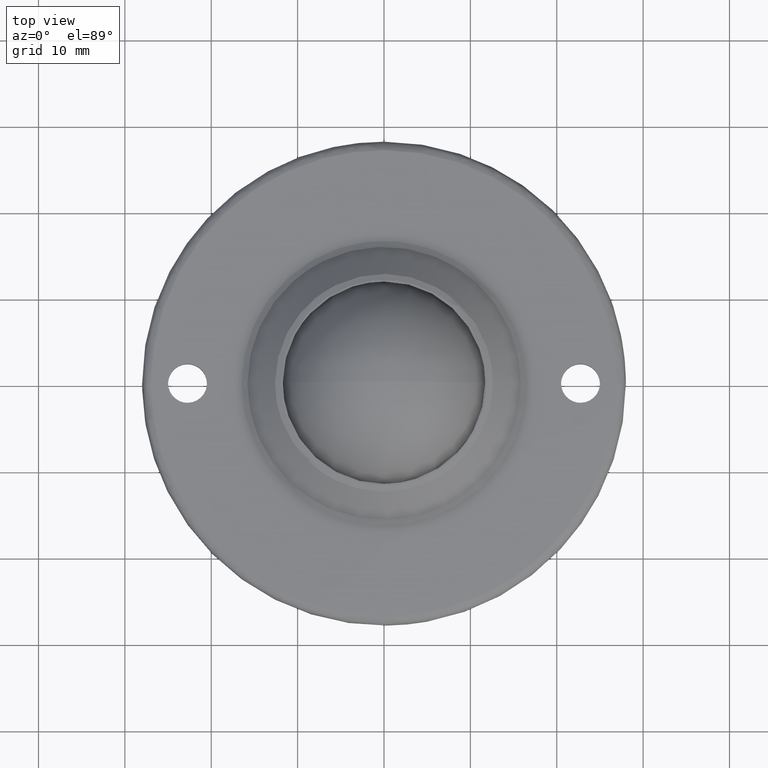
[diagram: clean part render]
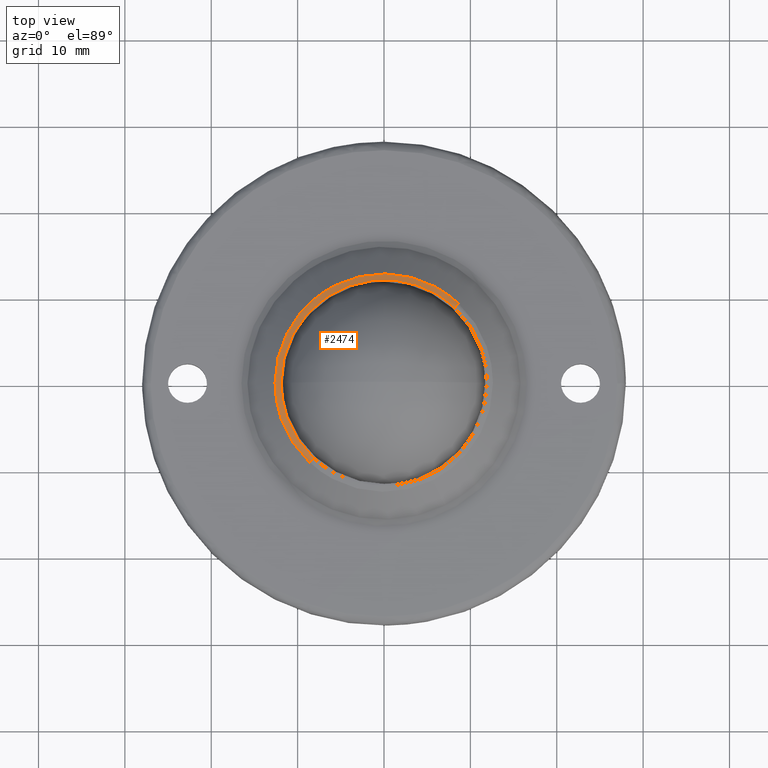
[diagram: same view with one face highlighted and labeled with its STEP entity id]
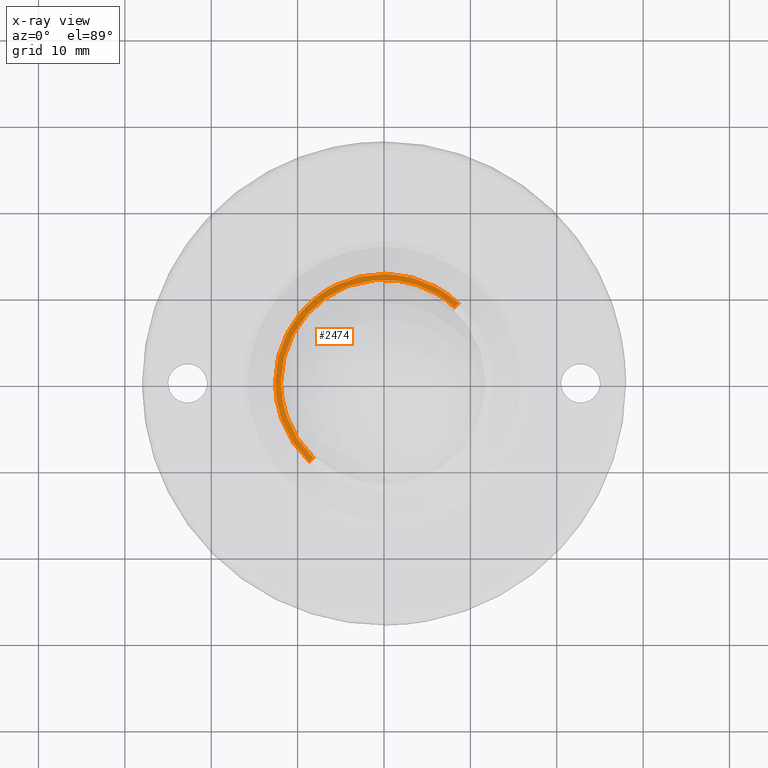
[diagram: x-ray of the same camera — body ghosted, the highlighted face saturated]
A machine part, top view. The second image highlights one B-rep face of the part: STEP entity #2474.
The next image is the same camera in x-ray: the body ghosted, the highlighted face saturated — about 0% of this face is hidden behind the body in this view.
In plain terms, the highlighted face is a freeform B-spline surface patch.
Its self-contained STEP definition (entity closure, byte-faithful):
#2293=CARTESIAN_POINT('',(-8.163616795164135,-8.693368912708042,7.600000000000000));
#2294=VERTEX_POINT('',#2293);
#2295=CARTESIAN_POINT('',(-11.925573454835000,0.0,7.600000000000000));
#2296=VERTEX_POINT('',#2295);
#2297=CARTESIAN_POINT('',(-8.163616795164135,-8.693368912708042,7.600000000000000));
#2298=CARTESIAN_POINT('',(-8.718444263820478,-8.172483485989355,7.600000000000004));
#2299=CARTESIAN_POINT('',(-9.492237974886486,-7.291936133757399,7.599999999999995));
#2300=CARTESIAN_POINT('',(-10.389162119896000,-5.905800620265679,7.600000000000004));
#2301=CARTESIAN_POINT('',(-10.978982483477759,-4.723213089714787,7.600000000000004));
#2302=CARTESIAN_POINT('',(-11.489838258054521,-3.314089371165391,7.599999999999986));
#2303=CARTESIAN_POINT('',(-11.839777723801991,-1.750326962409810,7.600000000000007));
#2304=CARTESIAN_POINT('',(-11.925603417638550,-0.583445045541907,7.600000000000026));
#2305=CARTESIAN_POINT('',(-11.925573454835000,0.0,7.600000000000000));
#2306=B_SPLINE_CURVE_WITH_KNOTS('',3,(#2297,#2298,#2299,#2300,#2301,#2302,#2303,#2304,#2305),.UNSPECIFIED.,.F.,.U.,(4,1,1,1,1,1,4),(0.000000013581463,2.283044473571672,3.500669598622301,4.946582733456438,6.240323371122520,7.990658878338623,9.740992956163508),.UNSPECIFIED.);
#2307=EDGE_CURVE('',#2294,#2296,#2306,.T.);
#2333=CARTESIAN_POINT('',(8.163616795164135,8.693368912708046,7.600000000000000));
#2334=VERTEX_POINT('',#2333);
#2346=CARTESIAN_POINT('',(-11.925573454835000,0.0,7.600000000000000));
#2347=CARTESIAN_POINT('',(-11.925673823424271,0.758086596925927,7.600000000000010));
#2348=CARTESIAN_POINT('',(-11.815021087971660,1.913220805359769,7.599999999999998));
#2349=CARTESIAN_POINT('',(-11.392922181891411,3.633266820642574,7.599999999999993));
#2350=CARTESIAN_POINT('',(-10.768098005307889,5.255017310016982,7.600000000000021));
#2351=CARTESIAN_POINT('',(-9.861311840404863,6.782282075701336,7.600000000000006));
#2352=CARTESIAN_POINT('',(-8.768620537810895,8.130433546308385,7.599999999999969));
#2353=CARTESIAN_POINT('',(-7.564781223528379,9.280590855131690,7.600000000000024));
#2354=CARTESIAN_POINT('',(-6.048804361216269,10.336062711804560,7.599999999999988));
#2355=CARTESIAN_POINT('',(-4.352884098989608,11.153749851054419,7.600000000000006));
#2356=CARTESIAN_POINT('',(-2.412824901062150,11.743089993198740,7.599999999999994));
#2357=CARTESIAN_POINT('',(-0.431274788215401,11.977677234038810,7.600000000000003));
#2358=CARTESIAN_POINT('',(1.303486387157560,11.882500827988460,7.599999999999995));
#2359=CARTESIAN_POINT('',(2.691835121067706,11.640194412810750,7.599999999999996));
#2360=CARTESIAN_POINT('',(4.048333768550767,11.254234079402160,7.600000000000040));
#2361=CARTESIAN_POINT('',(5.509615257520386,10.621035479261840,7.599999999999893));
#2362=CARTESIAN_POINT('',(6.928862496260011,9.751529894738487,7.600000000000213));
#2363=CARTESIAN_POINT('',(7.768900483768459,9.064058090521288,7.599999999999748));
#2364=CARTESIAN_POINT('',(8.163616795164135,8.693368912708046,7.600000000000000));
#2365=B_SPLINE_CURVE_WITH_KNOTS('',3,(#2346,#2347,#2348,#2349,#2350,#2351,#2352,#2353,#2354,#2355,#2356,#2357,#2358,#2359,#2360,#2361,#2362,#2363,#2364),.UNSPECIFIED.,.F.,.U.,(4,1,1,1,1,1,1,1,1,1,1,1,1,1,1,1,4),(0.000000032196965,2.274237756420938,3.465548184784222,5.306616740056555,7.472597570801629,8.772191262932584,10.504976669491700,12.454341819429199,14.295368128877920,16.136460182367180,18.519026211916621,20.251815149337549,21.334803302712039,22.742694844935670,24.475483066524038,26.099939087711672,27.724412789244500),.UNSPECIFIED.);
#2366=EDGE_CURVE('',#2296,#2334,#2365,.T.);
#2379=CARTESIAN_POINT('',(-7.896017805670598,-8.893932213923337,7.599316014785424));
#2380=CARTESIAN_POINT('',(-8.016454604343899,-8.780834531968553,7.599316014785424));
#2381=CARTESIAN_POINT('',(-16.804714236131726,-0.528109420367166,7.599316014785424));
#2382=CARTESIAN_POINT('',(-8.666411828249444,8.138302407882279,7.599316014785424));
#2383=CARTESIAN_POINT('',(-0.528109420367167,16.804714236131726,7.599316014785424));
#2384=CARTESIAN_POINT('',(8.260150211422120,8.551989124528962,7.599316014785424));
#2385=CARTESIAN_POINT('',(8.380587010096852,8.438891442572832,7.599316014785424));
#2386=CARTESIAN_POINT('',(-8.190781274943189,-9.225948475711471,7.615739194950663));
#2387=CARTESIAN_POINT('',(-8.315714057475535,-9.108628783887896,7.615739194950664));
#2388=CARTESIAN_POINT('',(-17.432045124977915,-0.547824087777258,7.615739194950665));
#2389=CARTESIAN_POINT('',(-8.989934606377586,8.442110518600327,7.615739194950664));
#2390=CARTESIAN_POINT('',(-0.547824087777259,17.432045124977915,7.615739194950665));
#2391=CARTESIAN_POINT('',(8.568506979726639,8.871240428865850,7.615739194950663));
#2392=CARTESIAN_POINT('',(8.693439762260468,8.753920737040879,7.615739194950665));
#2393=CARTESIAN_POINT('',(-8.396516816699716,-9.457685283734275,7.297490846458054));
#2394=CARTESIAN_POINT('',(-8.524587653202087,-9.337418763086216,7.297490846458053));
#2395=CARTESIAN_POINT('',(-17.869902165390261,-0.561584299618211,7.297490846458056));
#2396=CARTESIAN_POINT('',(-9.215743232504238,8.654158932886025,7.297490846458053));
#2397=CARTESIAN_POINT('',(-0.561584299618212,17.869902165390261,7.297490846458056));
#2398=CARTESIAN_POINT('',(8.783730212571522,9.094067701920794,7.297490846458053));
#2399=CARTESIAN_POINT('',(8.911801049075415,8.973801181271309,7.297490846458054));
#2407=(BOUNDED_SURFACE()B_SPLINE_SURFACE(2,2,((#2379,#2386,#2393),(#2380,#2387,#2394),(#2381,#2388,#2395),(#2382,#2389,#2396),(#2383,#2390,#2397),(#2384,#2391,#2398),(#2385,#2392,#2399)),.UNSPECIFIED.,.F.,.F.,.U.)B_SPLINE_SURFACE_WITH_KNOTS((3,1,2,1,3),(3,3),(0.0,0.418924567192894,21.365152926864550,42.311381286536196,42.730305853734173),(0.0,0.848564315677626),.UNSPECIFIED.)GEOMETRIC_REPRESENTATION_ITEM()RATIONAL_B_SPLINE_SURFACE(((0.945121865297257,0.863345596025661,0.944194226551692),(0.939649581385276,0.858346799162439,0.938727313695836),(0.660563101873889,0.603408159137769,0.659914758046826),(0.934177297473295,0.853348002299216,0.933260400839980),(0.660563101873889,0.603408159137769,0.659914758046826),(0.939649581385342,0.858346799162499,0.938727313695902),(0.945121865297389,0.863345596025782,0.944194226551825)))REPRESENTATION_ITEM('')SURFACE());
#2408=ORIENTED_EDGE('',*,*,#2307,.T.);
#2409=ORIENTED_EDGE('',*,*,#2366,.T.);
#2410=CARTESIAN_POINT('',(8.636149627959954,9.196565270632963,7.323537246495369));
#2411=VERTEX_POINT('',#2410);
#2412=CARTESIAN_POINT('',(8.163616795164135,8.693368912708046,7.600000000000000));
#2413=CARTESIAN_POINT('',(8.266874821916566,8.803327542843830,7.600248580362123));
#2414=CARTESIAN_POINT('',(8.440544054281061,8.988266491302548,7.541398427627129));
#2415=CARTESIAN_POINT('',(8.585066627084173,9.142167399821670,7.394779718558430));
#2416=CARTESIAN_POINT('',(8.636149627959954,9.196565270632963,7.323537246495369));
#2417=B_SPLINE_CURVE_WITH_KNOTS('',3,(#2412,#2413,#2414,#2415,#2416),.UNSPECIFIED.,.F.,.U.,(4,1,4),(0.000000037722060,0.452376817010652,0.761901339916377),.UNSPECIFIED.);
#2418=EDGE_CURVE('',#2334,#2411,#2417,.T.);
#2419=ORIENTED_EDGE('',*,*,#2418,.T.);
#2420=CARTESIAN_POINT('',(-5.629168605710653,11.290365538528540,7.323537246144431));
#2421=VERTEX_POINT('',#2420);
#2422=CARTESIAN_POINT('',(-5.629168605710653,11.290365538528540,7.323537246144431));
#2423=CARTESIAN_POINT('',(-5.056903365258764,11.575718362167461,7.323537246161187));
#2424=CARTESIAN_POINT('',(-3.831742581690929,12.074267557165451,7.323537246196247));
#2425=CARTESIAN_POINT('',(-2.035716518315575,12.494170303132440,7.323537246245376));
#2426=CARTESIAN_POINT('',(-0.320390209904720,12.643937644940291,7.323537246290525));
#2427=CARTESIAN_POINT('',(1.280244611205363,12.585568180910579,7.323537246331145));
#2428=CARTESIAN_POINT('',(3.216411531030198,12.263833016156470,7.323537246378500));
#2429=CARTESIAN_POINT('',(5.227243082336990,11.561967808946649,7.323537246425098));
#2430=CARTESIAN_POINT('',(7.139791062312940,10.463896916223410,7.323537246466163));
#2431=CARTESIAN_POINT('',(8.170023893950535,9.634332347222989,7.323537246486515));
#2432=CARTESIAN_POINT('',(8.636149627959954,9.196565270632963,7.323537246495369));
#2433=B_SPLINE_CURVE_WITH_KNOTS('',3,(#2422,#2423,#2424,#2425,#2426,#2427,#2428,#2429,#2430,#2431,#2432),.UNSPECIFIED.,.F.,.U.,(4,1,1,1,1,1,1,1,4),(0.000000011005280,1.918396898688464,3.956695315620520,5.515393327913911,7.074106308550167,8.752671148331073,11.390485346251760,13.428786859487481,15.347180452303890),.UNSPECIFIED.);
#2434=EDGE_CURVE('',#2421,#2411,#2433,.T.);
#2435=ORIENTED_EDGE('',*,*,#2434,.F.);
#2436=CARTESIAN_POINT('',(-12.615858797116291,0.0,7.323537245918689));
#2437=VERTEX_POINT('',#2436);
#2438=CARTESIAN_POINT('',(-12.615858797116291,0.0,7.323537245918689));
#2439=CARTESIAN_POINT('',(-12.616053298594800,0.946710319639604,7.323537245924229));
#2440=CARTESIAN_POINT('',(-12.430514682036780,2.585137362794273,7.323537245938057));
#2441=CARTESIAN_POINT('',(-11.778316491133230,4.639656935247343,7.323537245964977));
#2442=CARTESIAN_POINT('',(-11.095646420878850,6.051870617725675,7.323537245988847));
#2443=CARTESIAN_POINT('',(-10.232699549135480,7.446540067851863,7.323537246016722));
#2444=CARTESIAN_POINT('',(-9.187490578544059,8.717144893579718,7.323537246048050));
#2445=CARTESIAN_POINT('',(-7.585035491523128,10.153913804759251,7.323537246093079));
#2446=CARTESIAN_POINT('',(-6.411286023242364,10.900545622734340,7.323537246124280));
#2447=CARTESIAN_POINT('',(-5.629168605710653,11.290365538528540,7.323537246144431));
#2448=B_SPLINE_CURVE_WITH_KNOTS('',3,(#2438,#2439,#2440,#2441,#2442,#2443,#2444,#2445,#2446,#2447),.UNSPECIFIED.,.F.,.U.,(4,1,1,1,1,1,1,4),(0.000000017054921,2.840091102676922,4.915555659835825,6.444844659417327,7.537154786549262,9.831089186078156,11.360379359570761,13.981999071858491),.UNSPECIFIED.);
#2449=EDGE_CURVE('',#2437,#2421,#2448,.T.);
#2450=ORIENTED_EDGE('',*,*,#2449,.F.);
#2451=CARTESIAN_POINT('',(-8.636149627959952,-9.196565270632963,7.323537246495369));
#2452=VERTEX_POINT('',#2451);
#2453=CARTESIAN_POINT('',(-8.636149627959952,-9.196565270632963,7.323537246495369));
#2454=CARTESIAN_POINT('',(-9.086095163239952,-8.774070015102396,7.323537246462777));
#2455=CARTESIAN_POINT('',(-9.960238360008757,-7.823259915086866,7.323537246392559));
#2456=CARTESIAN_POINT('',(-11.099050832848381,-6.123502692153422,7.323537246276788));
#2457=CARTESIAN_POINT('',(-12.002323468719769,-4.107277468080495,7.323537246149627));
#2458=CARTESIAN_POINT('',(-12.513303368181189,-2.012661029620138,7.323537246027339));
#2459=CARTESIAN_POINT('',(-12.615877537265280,-0.617213325299660,7.323537245951262));
#2460=CARTESIAN_POINT('',(-12.615858797116291,0.0,7.323537245918689));
#2461=B_SPLINE_CURVE_WITH_KNOTS('',3,(#2453,#2454,#2455,#2456,#2457,#2458,#2459,#2460),.UNSPECIFIED.,.F.,.U.,(4,1,1,1,1,4),(0.000000013471604,1.851644426683668,3.864311631144989,6.118481542481987,8.453184292965588,10.304828706177391),.UNSPECIFIED.);
#2462=EDGE_CURVE('',#2452,#2437,#2461,.T.);
#2463=ORIENTED_EDGE('',*,*,#2462,.F.);
#2464=CARTESIAN_POINT('',(-8.163616795164135,-8.693368912708042,7.600000000000000));
#2465=CARTESIAN_POINT('',(-8.266875755035400,-8.803328536514455,7.600250978429102));
#2466=CARTESIAN_POINT('',(-8.440540661174120,-8.988262878010644,7.541391105561512));
#2467=CARTESIAN_POINT('',(-8.585069110513626,-9.142170044405425,7.394784242585047));
#2468=CARTESIAN_POINT('',(-8.636149627959952,-9.196565270632963,7.323537246495369));
#2469=B_SPLINE_CURVE_WITH_KNOTS('',3,(#2464,#2465,#2466,#2467,#2468),.UNSPECIFIED.,.F.,.U.,(4,1,4),(0.000000037721931,0.452376817010597,0.761901339916375),.UNSPECIFIED.);
#2470=EDGE_CURVE('',#2294,#2452,#2469,.T.);
#2471=ORIENTED_EDGE('',*,*,#2470,.F.);
#2472=EDGE_LOOP('',(#2408,#2409,#2419,#2435,#2450,#2463,#2471));
#2473=FACE_OUTER_BOUND('',#2472,.T.);
#2474=ADVANCED_FACE('',(#2473),#2407,.T.);